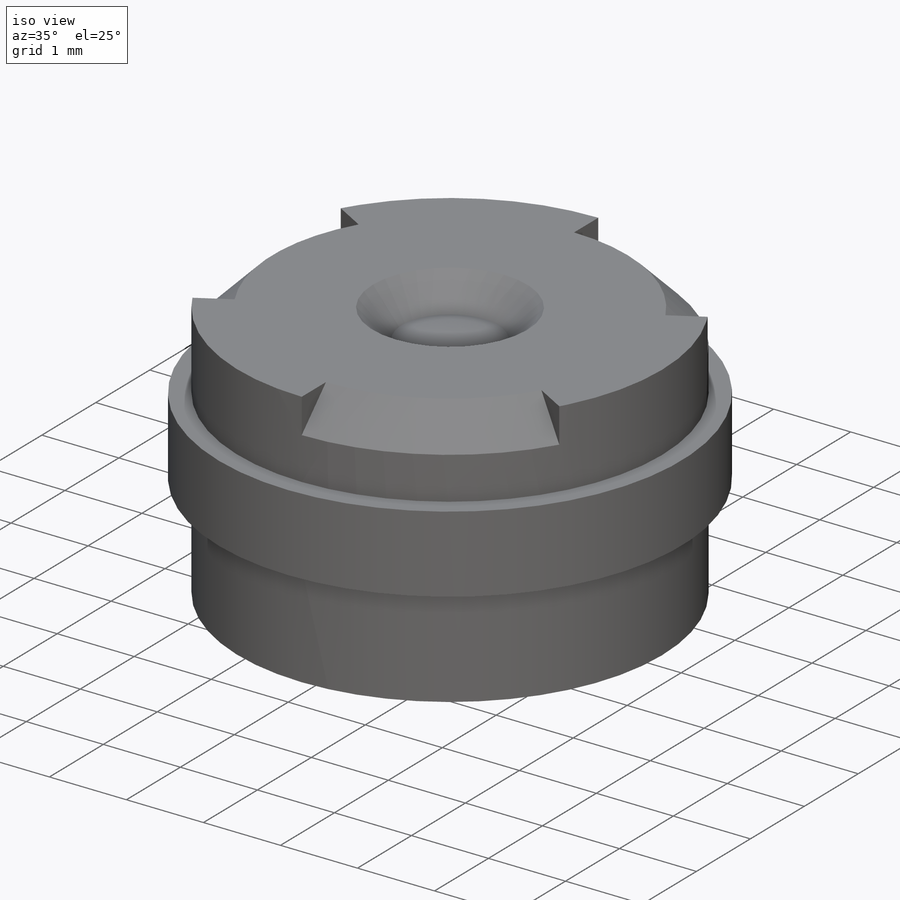
[diagram: iso view]
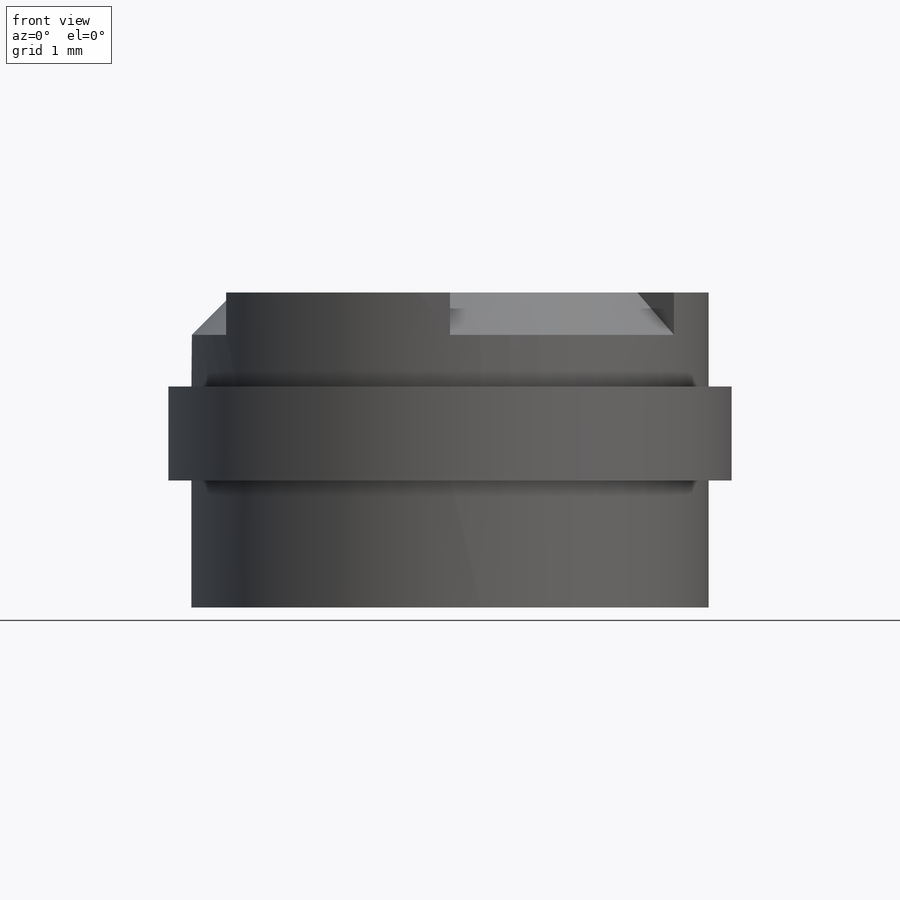
[diagram: front view]
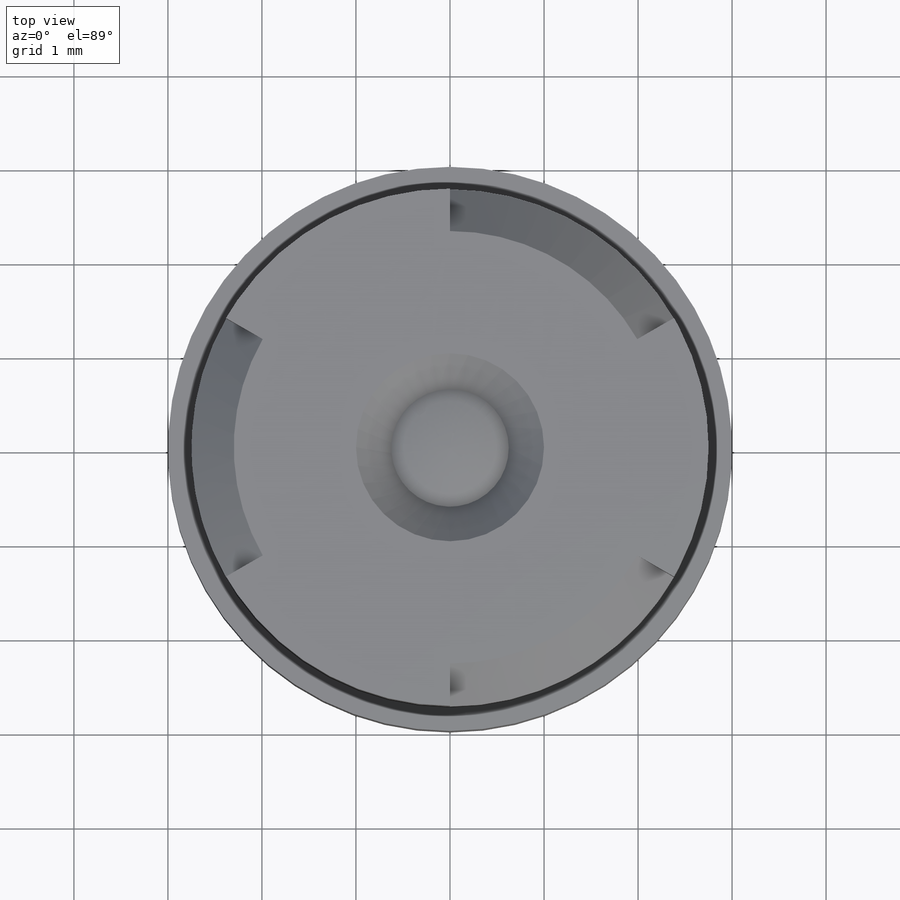
[diagram: top view]
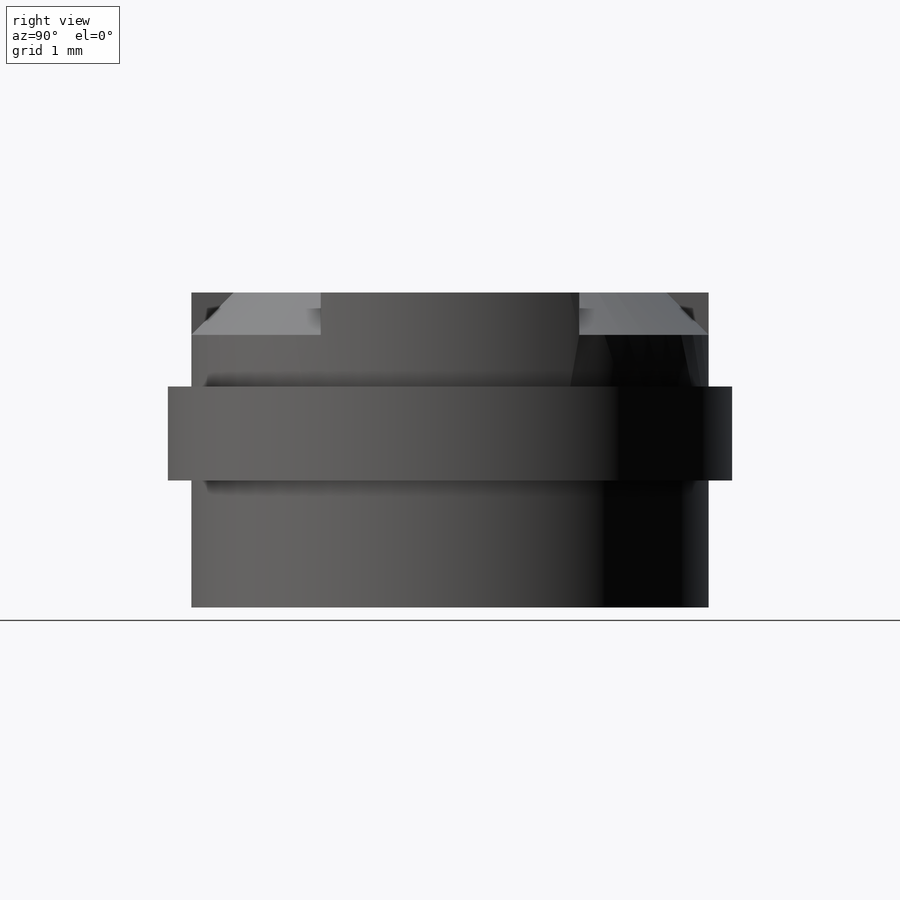
[diagram: right view]
SOLIDWORKS PART (.sldprt)
format: sldprt  version: not decoded by parser v0  size: 228,352 bytes
history: native  units: mm
features: plane x3, sketch x3, revolve x2, material x1, cut_revolve x1, pattern_circular x1 (+10 scaffold rows collapsed)
feature tree (21):
  scaffold x10  (default folders/planes/origin — collapsed)
  material  "ABS PC"
  plane  "Vorne"
  plane  "Oben"
  plane  "Rechts"
  sketch  "Skizze3"  dims[c1.D6=~1.152173mm c1.D1=3.35mm c1.D2=5.5mm c1.D3=2.0mm c1.D4=1.25mm c1.D5=3.6mm c2.D6=~3.57552mm c2.D5=3.6mm c3.D6=0.1mm c3.D7=0.8mm c3.D8=0.3mm]
  revolve  "Body"  Angle=360deg
  sketch  "Skizze4"  dims[c1.D1=~0.602897mm c1.D2=~0.289991mm c2.D1=2.0mm c2.D2=1.0mm c2.D3=6.0mm]
  revolve  "Thread"  Angle=360deg
  sketch  "Skizze5"  dims[D1=0.45mm]
  cut_revolve  "Toolface"  Angle=60deg
  pattern_circular  "Kreismuster1"  Count=3 Angle=120deg
decode coverage: 7 of 7 modeling features carry decoded parameters
note: ~ marks probable driven/reference dimensions
note: suppression state not decoded; provenance and decode notes live in map.json
